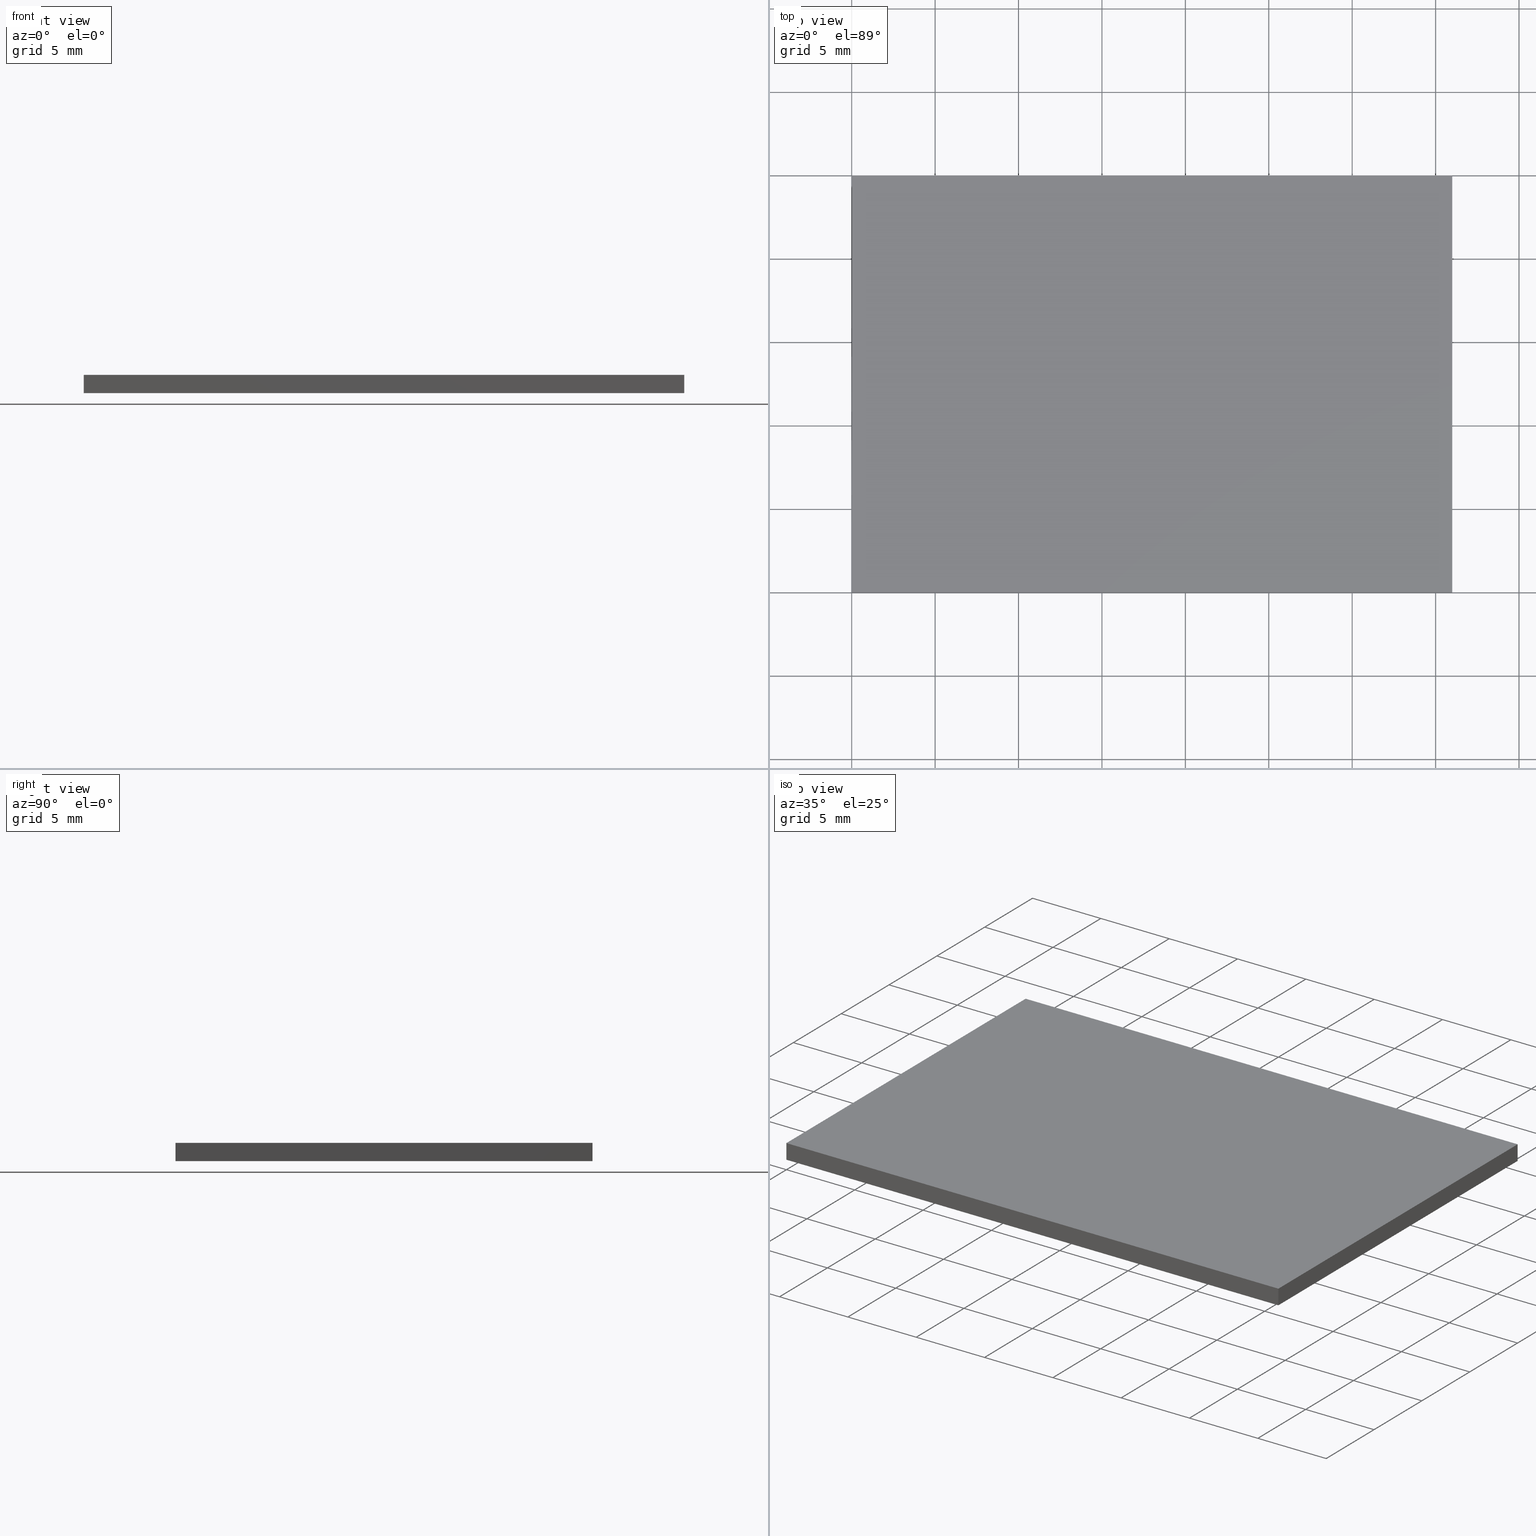
[diagram: canonical four-view strip — front | top / right | iso, engineering-drawing reading convention]
A machine part, canonical four-view strip (front | top / right | iso — engineering-drawing reading convention). The complete STEP part file that produces these views, byte-faithful:
ISO-10303-21;
HEADER;
FILE_DESCRIPTION (( 'STEP AP214' ),
    '1' );
FILE_NAME ('GDMLPH-490-25x36.STEP',
    '2024-08-13T06:01:18',
    ( 'Windows User' ),
    ( 'P R C' ),
    'SwSTEP 2.0',
    'SolidWorks 2022',
    '' );
FILE_SCHEMA (( 'AUTOMOTIVE_DESIGN' ));
ENDSEC;

DATA;
#1 = PLANE ( 'NONE',  #202 ) ;
#2 = VECTOR ( 'NONE', #53, 1000.000000000000000 ) ;
#3 = ORIENTED_EDGE ( 'NONE', *, *, #121, .F. ) ;
#4 = ORIENTED_EDGE ( 'NONE', *, *, #102, .T. ) ;
#5 = LINE ( 'NONE', #83, #161 ) ;
#6 = EDGE_CURVE ( 'NONE', #176, #66, #198, .T. ) ;
#7 = CARTESIAN_POINT ( 'NONE',  ( 0.000000000000000000, 0.000000000000000000, 1.100000000000000089 ) ) ;
#8 = ORIENTED_EDGE ( 'NONE', *, *, #85, .F. ) ;
#9 = ORIENTED_EDGE ( 'NONE', *, *, #74, .F. ) ;
#10 = CARTESIAN_POINT ( 'NONE',  ( 0.000000000000000000, 0.000000000000000000, 0.000000000000000000 ) ) ;
#11 = CARTESIAN_POINT ( 'NONE',  ( 0.000000000000000000, 0.000000000000000000, 0.000000000000000000 ) ) ;
#12 = DIRECTION ( 'NONE',  ( -0.000000000000000000, -1.000000000000000000, -0.000000000000000000 ) ) ;
#13 =( NAMED_UNIT ( * ) PLANE_ANGLE_UNIT ( ) SI_UNIT ( $, .RADIAN. ) );
#14 = ORIENTED_EDGE ( 'NONE', *, *, #97, .T. ) ;
#15 = LINE ( 'NONE', #192, #52 ) ;
#16 = CARTESIAN_POINT ( 'NONE',  ( 0.000000000000000000, 25.00000000000000000, 0.000000000000000000 ) ) ;
#17 = ORIENTED_EDGE ( 'NONE', *, *, #41, .F. ) ;
#18 = ORIENTED_EDGE ( 'NONE', *, *, #46, .F. ) ;
#19 = LINE ( 'NONE', #7, #61 ) ;
#20 = PRESENTATION_LAYER_ASSIGNMENT (  '', '', ( #109 ) ) ;
#21 = FILL_AREA_STYLE_COLOUR ( '', #81 ) ;
#22 = DIRECTION ( 'NONE',  ( -1.000000000000000000, -0.000000000000000000, -0.000000000000000000 ) ) ;
#23 = ORIENTED_EDGE ( 'NONE', *, *, #74, .T. ) ;
#24 = DIRECTION ( 'NONE',  ( -1.000000000000000000, -0.000000000000000000, -0.000000000000000000 ) ) ;
#25 = DIRECTION ( 'NONE',  ( 0.000000000000000000, 0.000000000000000000, -1.000000000000000000 ) ) ;
#26 = CARTESIAN_POINT ( 'NONE',  ( 36.00000000000000000, 25.00000000000000000, 0.000000000000000000 ) ) ;
#27 = FACE_OUTER_BOUND ( 'NONE', #31, .T. ) ;
#28 = EDGE_CURVE ( 'NONE', #37, #129, #80, .T. ) ;
#29 = DIRECTION ( 'NONE',  ( -1.000000000000000000, 0.000000000000000000, -0.000000000000000000 ) ) ;
#30 = PLANE ( 'NONE',  #146 ) ;
#31 = EDGE_LOOP ( 'NONE', ( #194, #9, #114, #39 ) ) ;
#32 = VECTOR ( 'NONE', #115, 1000.000000000000000 ) ;
#33 = ORIENTED_EDGE ( 'NONE', *, *, #97, .F. ) ;
#34 = DIRECTION ( 'NONE',  ( 0.000000000000000000, 1.000000000000000000, 0.000000000000000000 ) ) ;
#35 = CARTESIAN_POINT ( 'NONE',  ( 36.00000000000000000, 25.00000000000000000, 1.100000000000000089 ) ) ;
#36 = EDGE_CURVE ( 'NONE', #129, #99, #5, .T. ) ;
#37 = VERTEX_POINT ( 'NONE', #69 ) ;
#38 = SURFACE_STYLE_USAGE ( .BOTH. , #103 ) ;
#39 = ORIENTED_EDGE ( 'NONE', *, *, #46, .T. ) ;
#40 = CARTESIAN_POINT ( 'NONE',  ( 36.00000000000000000, 0.000000000000000000, 0.000000000000000000 ) ) ;
#41 = EDGE_CURVE ( 'NONE', #66, #182, #19, .T. ) ;
#42 = VECTOR ( 'NONE', #12, 1000.000000000000000 ) ;
#43 = DIRECTION ( 'NONE',  ( 0.000000000000000000, -0.000000000000000000, -1.000000000000000000 ) ) ;
#44 = PRODUCT_DEFINITION ( 'δ֪', '', #195, #70 ) ;
#45 = CARTESIAN_POINT ( 'NONE',  ( 0.000000000000000000, 0.000000000000000000, 1.100000000000000089 ) ) ;
#46 = EDGE_CURVE ( 'NONE', #176, #99, #71, .T. ) ;
#47 = DIRECTION ( 'NONE',  ( 0.000000000000000000, 0.000000000000000000, -1.000000000000000000 ) ) ;
#48 =( NAMED_UNIT ( * ) SI_UNIT ( $, .STERADIAN. ) SOLID_ANGLE_UNIT ( ) );
#49 = ORIENTED_EDGE ( 'NONE', *, *, #36, .T. ) ;
#50 = LINE ( 'NONE', #144, #93 ) ;
#51 = PRODUCT ( 'GDMLPH-490-25x36', 'GDMLPH-490-25x36', '', ( #162 ) ) ;
#52 = VECTOR ( 'NONE', #34, 1000.000000000000000 ) ;
#53 = DIRECTION ( 'NONE',  ( -0.000000000000000000, -0.000000000000000000, -1.000000000000000000 ) ) ;
#54 = ORIENTED_EDGE ( 'NONE', *, *, #28, .F. ) ;
#55 = SURFACE_STYLE_FILL_AREA ( #131 ) ;
#56 = LINE ( 'NONE', #11, #42 ) ;
#57 = DIRECTION ( 'NONE',  ( 0.000000000000000000, -0.000000000000000000, 1.000000000000000000 ) ) ;
#58 = EDGE_CURVE ( 'NONE', #128, #176, #72, .T. ) ;
#59 =( LENGTH_UNIT ( ) NAMED_UNIT ( * ) SI_UNIT ( .MILLI., .METRE. ) );
#60 = AXIS2_PLACEMENT_3D ( 'NONE', #117, #157, #57 ) ;
#61 = VECTOR ( 'NONE', #196, 1000.000000000000000 ) ;
#62 = CARTESIAN_POINT ( 'NONE',  ( 0.000000000000000000, 0.000000000000000000, 1.100000000000000089 ) ) ;
#63 = VECTOR ( 'NONE', #151, 1000.000000000000000 ) ;
#64 = EDGE_CURVE ( 'NONE', #99, #147, #56, .T. ) ;
#65 =( LENGTH_UNIT ( ) NAMED_UNIT ( * ) SI_UNIT ( .MILLI., .METRE. ) );
#66 = VERTEX_POINT ( 'NONE', #134 ) ;
#67 = LINE ( 'NONE', #126, #75 ) ;
#68 = ORIENTED_EDGE ( 'NONE', *, *, #41, .T. ) ;
#69 = CARTESIAN_POINT ( 'NONE',  ( 36.00000000000000000, 0.000000000000000000, 0.000000000000000000 ) ) ;
#70 = PRODUCT_DEFINITION_CONTEXT ( 'detailed design', #143, 'design' ) ;
#71 = LINE ( 'NONE', #150, #2 ) ;
#72 = LINE ( 'NONE', #167, #122 ) ;
#73 = ADVANCED_FACE ( 'NONE', ( #152 ), #200, .F. ) ;
#74 = EDGE_CURVE ( 'NONE', #66, #147, #188, .T. ) ;
#75 = VECTOR ( 'NONE', #193, 1000.000000000000000 ) ;
#76 = ADVANCED_FACE ( 'NONE', ( #27 ), #1, .F. ) ;
#77 = PRESENTATION_STYLE_ASSIGNMENT (( #108 ) ) ;
#78 = PRESENTATION_STYLE_ASSIGNMENT (( #38 ) ) ;
#79 = CARTESIAN_POINT ( 'NONE',  ( 0.000000000000000000, 0.000000000000000000, 1.100000000000000089 ) ) ;
#80 = LINE ( 'NONE', #40, #63 ) ;
#81 = COLOUR_RGB ( '',1.000000000000000000, 1.000000000000000000, 1.000000000000000000 ) ;
#82 = CLOSED_SHELL ( 'NONE', ( #76, #197, #181, #149, #73, #155 ) ) ;
#83 = CARTESIAN_POINT ( 'NONE',  ( 0.000000000000000000, 25.00000000000000000, 0.000000000000000000 ) ) ;
#84 = ORIENTED_EDGE ( 'NONE', *, *, #28, .T. ) ;
#85 = EDGE_CURVE ( 'NONE', #182, #128, #15, .T. ) ;
#86 = AXIS2_PLACEMENT_3D ( 'NONE', #124, #172, #138 ) ;
#87 = PLANE ( 'NONE',  #60 ) ;
#88 =( NAMED_UNIT ( * ) SI_UNIT ( $, .STERADIAN. ) SOLID_ANGLE_UNIT ( ) );
#89 = CARTESIAN_POINT ( 'NONE',  ( 36.00000000000000000, 0.000000000000000000, 1.100000000000000089 ) ) ;
#90 = UNCERTAINTY_MEASURE_WITH_UNIT (LENGTH_MEASURE( 1.000000000000000082E-05 ), #65, 'distance_accuracy_value', 'NONE');
#91 =( NAMED_UNIT ( * ) PLANE_ANGLE_UNIT ( ) SI_UNIT ( $, .RADIAN. ) );
#92 = FACE_OUTER_BOUND ( 'NONE', #174, .T. ) ;
#93 = VECTOR ( 'NONE', #113, 1000.000000000000000 ) ;
#94 = ORIENTED_EDGE ( 'NONE', *, *, #6, .T. ) ;
#95 = MANIFOLD_SOLID_BREP ( '͹̨-����1', #82 ) ;
#96 = DIRECTION ( 'NONE',  ( -0.000000000000000000, -0.000000000000000000, -1.000000000000000000 ) ) ;
#97 = EDGE_CURVE ( 'NONE', #182, #37, #67, .T. ) ;
#98 = PRODUCT_DEFINITION_SHAPE ( 'NONE', 'NONE',  #44 ) ;
#99 = VERTEX_POINT ( 'NONE', #16 ) ;
#100 = EDGE_LOOP ( 'NONE', ( #94, #68, #163, #183 ) ) ;
#101 = VECTOR ( 'NONE', #96, 1000.000000000000000 ) ;
#102 = EDGE_CURVE ( 'NONE', #147, #37, #50, .T. ) ;
#103 = SURFACE_SIDE_STYLE ('',( #55 ) ) ;
#104 = PLANE ( 'NONE',  #158 ) ;
#105 = FACE_OUTER_BOUND ( 'NONE', #132, .T. ) ;
#106 = FACE_OUTER_BOUND ( 'NONE', #166, .T. ) ;
#107 = CARTESIAN_POINT ( 'NONE',  ( 0.000000000000000000, 0.000000000000000000, 1.100000000000000089 ) ) ;
#108 = SURFACE_STYLE_USAGE ( .BOTH. , #191 ) ;
#109 = STYLED_ITEM ( 'NONE', ( #78 ), #112 ) ;
#110 = MECHANICAL_DESIGN_GEOMETRIC_PRESENTATION_REPRESENTATION (  '', ( #125 ), #168 ) ;
#111 = APPLICATION_CONTEXT ( 'automotive_design' ) ;
#112 = ADVANCED_BREP_SHAPE_REPRESENTATION ( 'GDMLPH-490-25x36', ( #95, #86 ), #120 ) ;
#113 = DIRECTION ( 'NONE',  ( 1.000000000000000000, 0.000000000000000000, 0.000000000000000000 ) ) ;
#114 = ORIENTED_EDGE ( 'NONE', *, *, #6, .F. ) ;
#115 = DIRECTION ( 'NONE',  ( -0.000000000000000000, -1.000000000000000000, -0.000000000000000000 ) ) ;
#116 = DIRECTION ( 'NONE',  ( 0.000000000000000000, 0.000000000000000000, -1.000000000000000000 ) ) ;
#117 = CARTESIAN_POINT ( 'NONE',  ( 0.000000000000000000, 0.000000000000000000, 1.100000000000000089 ) ) ;
#118 = UNCERTAINTY_MEASURE_WITH_UNIT (LENGTH_MEASURE( 1.000000000000000082E-05 ), #185, 'distance_accuracy_value', 'NONE');
#119 = DIRECTION ( 'NONE',  ( 1.000000000000000000, 0.000000000000000000, 0.000000000000000000 ) ) ;
#120 =( GEOMETRIC_REPRESENTATION_CONTEXT ( 3 ) GLOBAL_UNCERTAINTY_ASSIGNED_CONTEXT ( ( #190 ) ) GLOBAL_UNIT_ASSIGNED_CONTEXT ( ( #59, #91, #88 ) ) REPRESENTATION_CONTEXT ( 'NONE', 'WORKASPACE' ) );
#121 = EDGE_CURVE ( 'NONE', #128, #129, #164, .T. ) ;
#122 = VECTOR ( 'NONE', #22, 1000.000000000000000 ) ;
#123 = APPLICATION_PROTOCOL_DEFINITION ( 'draft international standard', 'automotive_design', 1998, #143 ) ;
#124 = CARTESIAN_POINT ( 'NONE',  ( 0.000000000000000000, 0.000000000000000000, 0.000000000000000000 ) ) ;
#125 = STYLED_ITEM ( 'NONE', ( #77 ), #95 ) ;
#126 = CARTESIAN_POINT ( 'NONE',  ( 36.00000000000000000, 0.000000000000000000, 1.100000000000000089 ) ) ;
#127 = ORIENTED_EDGE ( 'NONE', *, *, #121, .T. ) ;
#128 = VERTEX_POINT ( 'NONE', #169 ) ;
#129 = VERTEX_POINT ( 'NONE', #26 ) ;
#130 = ORIENTED_EDGE ( 'NONE', *, *, #102, .F. ) ;
#131 = FILL_AREA_STYLE ('',( #21 ) ) ;
#132 = EDGE_LOOP ( 'NONE', ( #49, #18, #148, #127 ) ) ;
#133 = DIRECTION ( 'NONE',  ( 0.000000000000000000, 0.000000000000000000, 1.000000000000000000 ) ) ;
#134 = CARTESIAN_POINT ( 'NONE',  ( 0.000000000000000000, 0.000000000000000000, 1.100000000000000089 ) ) ;
#135 = CARTESIAN_POINT ( 'NONE',  ( 36.00000000000000000, 0.000000000000000000, 1.100000000000000089 ) ) ;
#136 = MECHANICAL_DESIGN_GEOMETRIC_PRESENTATION_REPRESENTATION (  '', ( #109 ), #179 ) ;
#137 = CARTESIAN_POINT ( 'NONE',  ( 0.000000000000000000, 25.00000000000000000, 1.100000000000000089 ) ) ;
#138 = DIRECTION ( 'NONE',  ( 1.000000000000000000, 0.000000000000000000, 0.000000000000000000 ) ) ;
#139 = DIRECTION ( 'NONE',  ( -0.000000000000000000, -0.000000000000000000, -1.000000000000000000 ) ) ;
#140 = SURFACE_STYLE_FILL_AREA ( #142 ) ;
#141 = VECTOR ( 'NONE', #139, 1000.000000000000000 ) ;
#142 = FILL_AREA_STYLE ('',( #159 ) ) ;
#143 = APPLICATION_CONTEXT ( 'automotive_design' ) ;
#144 = CARTESIAN_POINT ( 'NONE',  ( 0.000000000000000000, 0.000000000000000000, 0.000000000000000000 ) ) ;
#145 = EDGE_LOOP ( 'NONE', ( #180, #165, #54, #130 ) ) ;
#146 = AXIS2_PLACEMENT_3D ( 'NONE', #89, #187, #133 ) ;
#147 = VERTEX_POINT ( 'NONE', #173 ) ;
#148 = ORIENTED_EDGE ( 'NONE', *, *, #58, .F. ) ;
#149 = ADVANCED_FACE ( 'NONE', ( #105 ), #104, .F. ) ;
#150 = CARTESIAN_POINT ( 'NONE',  ( 0.000000000000000000, 25.00000000000000000, 1.100000000000000089 ) ) ;
#151 = DIRECTION ( 'NONE',  ( 0.000000000000000000, 1.000000000000000000, 0.000000000000000000 ) ) ;
#152 = FACE_OUTER_BOUND ( 'NONE', #100, .T. ) ;
#153 = DIRECTION ( 'NONE',  ( 0.000000000000000000, -1.000000000000000000, 0.000000000000000000 ) ) ;
#154 = FACE_OUTER_BOUND ( 'NONE', #145, .T. ) ;
#155 = ADVANCED_FACE ( 'NONE', ( #154 ), #201, .T. ) ;
#156 = PRESENTATION_LAYER_ASSIGNMENT (  '', '', ( #125 ) ) ;
#157 = DIRECTION ( 'NONE',  ( 0.000000000000000000, 1.000000000000000000, 0.000000000000000000 ) ) ;
#158 = AXIS2_PLACEMENT_3D ( 'NONE', #137, #153, #43 ) ;
#159 = FILL_AREA_STYLE_COLOUR ( '', #170 ) ;
#160 = SHAPE_DEFINITION_REPRESENTATION ( #98, #112 ) ;
#161 = VECTOR ( 'NONE', #24, 1000.000000000000000 ) ;
#162 = PRODUCT_CONTEXT ( 'NONE', #111, 'mechanical' ) ;
#163 = ORIENTED_EDGE ( 'NONE', *, *, #85, .T. ) ;
#164 = LINE ( 'NONE', #35, #101 ) ;
#165 = ORIENTED_EDGE ( 'NONE', *, *, #36, .F. ) ;
#166 = EDGE_LOOP ( 'NONE', ( #84, #3, #8, #14 ) ) ;
#167 = CARTESIAN_POINT ( 'NONE',  ( 0.000000000000000000, 25.00000000000000000, 1.100000000000000089 ) ) ;
#168 =( GEOMETRIC_REPRESENTATION_CONTEXT ( 3 ) GLOBAL_UNCERTAINTY_ASSIGNED_CONTEXT ( ( #90 ) ) GLOBAL_UNIT_ASSIGNED_CONTEXT ( ( #65, #177, #48 ) ) REPRESENTATION_CONTEXT ( 'NONE', 'WORKASPACE' ) );
#169 = CARTESIAN_POINT ( 'NONE',  ( 36.00000000000000000, 25.00000000000000000, 1.100000000000000089 ) ) ;
#170 = COLOUR_RGB ( '',1.000000000000000000, 1.000000000000000000, 1.000000000000000000 ) ;
#171 = CARTESIAN_POINT ( 'NONE',  ( 0.000000000000000000, 25.00000000000000000, 1.100000000000000089 ) ) ;
#172 = DIRECTION ( 'NONE',  ( 0.000000000000000000, 0.000000000000000000, 1.000000000000000000 ) ) ;
#173 = CARTESIAN_POINT ( 'NONE',  ( 0.000000000000000000, 0.000000000000000000, 0.000000000000000000 ) ) ;
#174 = EDGE_LOOP ( 'NONE', ( #4, #33, #17, #23 ) ) ;
#175 =( NAMED_UNIT ( * ) SI_UNIT ( $, .STERADIAN. ) SOLID_ANGLE_UNIT ( ) );
#176 = VERTEX_POINT ( 'NONE', #171 ) ;
#177 =( NAMED_UNIT ( * ) PLANE_ANGLE_UNIT ( ) SI_UNIT ( $, .RADIAN. ) );
#178 = AXIS2_PLACEMENT_3D ( 'NONE', #45, #47, #29 ) ;
#179 =( GEOMETRIC_REPRESENTATION_CONTEXT ( 3 ) GLOBAL_UNCERTAINTY_ASSIGNED_CONTEXT ( ( #118 ) ) GLOBAL_UNIT_ASSIGNED_CONTEXT ( ( #185, #13, #175 ) ) REPRESENTATION_CONTEXT ( 'NONE', 'WORKASPACE' ) );
#180 = ORIENTED_EDGE ( 'NONE', *, *, #64, .F. ) ;
#181 = ADVANCED_FACE ( 'NONE', ( #106 ), #30, .F. ) ;
#182 = VERTEX_POINT ( 'NONE', #135 ) ;
#183 = ORIENTED_EDGE ( 'NONE', *, *, #58, .T. ) ;
#184 = PRODUCT_RELATED_PRODUCT_CATEGORY ( 'part', '', ( #51 ) ) ;
#185 =( LENGTH_UNIT ( ) NAMED_UNIT ( * ) SI_UNIT ( .MILLI., .METRE. ) );
#186 = DIRECTION ( 'NONE',  ( -1.000000000000000000, 0.000000000000000000, -0.000000000000000000 ) ) ;
#187 = DIRECTION ( 'NONE',  ( -1.000000000000000000, 0.000000000000000000, 0.000000000000000000 ) ) ;
#188 = LINE ( 'NONE', #107, #141 ) ;
#189 = APPLICATION_PROTOCOL_DEFINITION ( 'draft international standard', 'automotive_design', 1998, #111 ) ;
#190 = UNCERTAINTY_MEASURE_WITH_UNIT (LENGTH_MEASURE( 1.000000000000000082E-05 ), #59, 'distance_accuracy_value', 'NONE');
#191 = SURFACE_SIDE_STYLE ('',( #140 ) ) ;
#192 = CARTESIAN_POINT ( 'NONE',  ( 36.00000000000000000, 0.000000000000000000, 1.100000000000000089 ) ) ;
#193 = DIRECTION ( 'NONE',  ( -0.000000000000000000, -0.000000000000000000, -1.000000000000000000 ) ) ;
#194 = ORIENTED_EDGE ( 'NONE', *, *, #64, .T. ) ;
#195 = PRODUCT_DEFINITION_FORMATION_WITH_SPECIFIED_SOURCE ( '�κ�', '', #51, .NOT_KNOWN. ) ;
#196 = DIRECTION ( 'NONE',  ( 1.000000000000000000, 0.000000000000000000, 0.000000000000000000 ) ) ;
#197 = ADVANCED_FACE ( 'NONE', ( #92 ), #87, .F. ) ;
#198 = LINE ( 'NONE', #79, #32 ) ;
#199 = AXIS2_PLACEMENT_3D ( 'NONE', #10, #25, #186 ) ;
#200 = PLANE ( 'NONE',  #178 ) ;
#201 = PLANE ( 'NONE',  #199 ) ;
#202 = AXIS2_PLACEMENT_3D ( 'NONE', #62, #119, #116 ) ;
ENDSEC;
END-ISO-10303-21;
